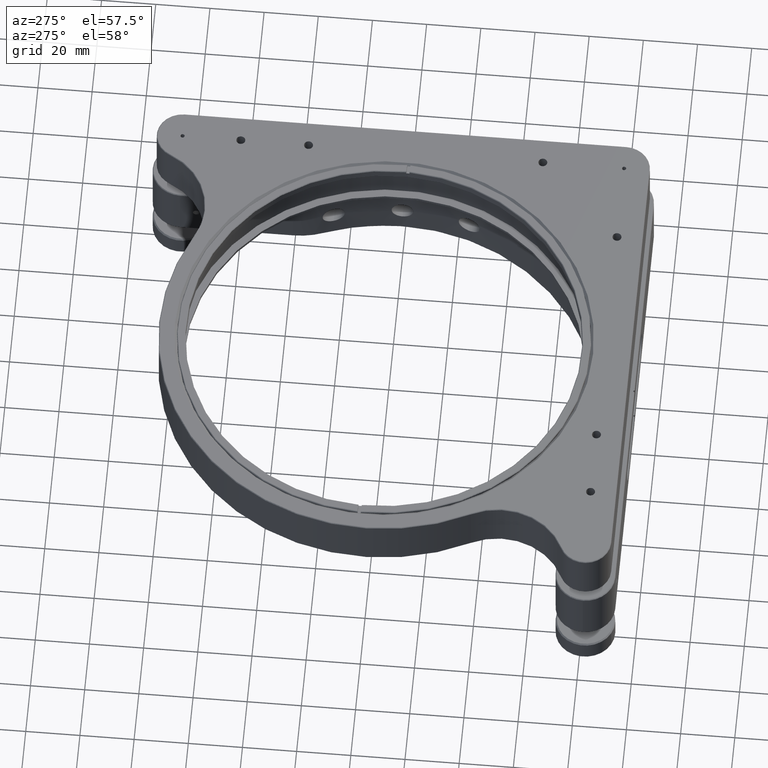
[diagram: clean part render]
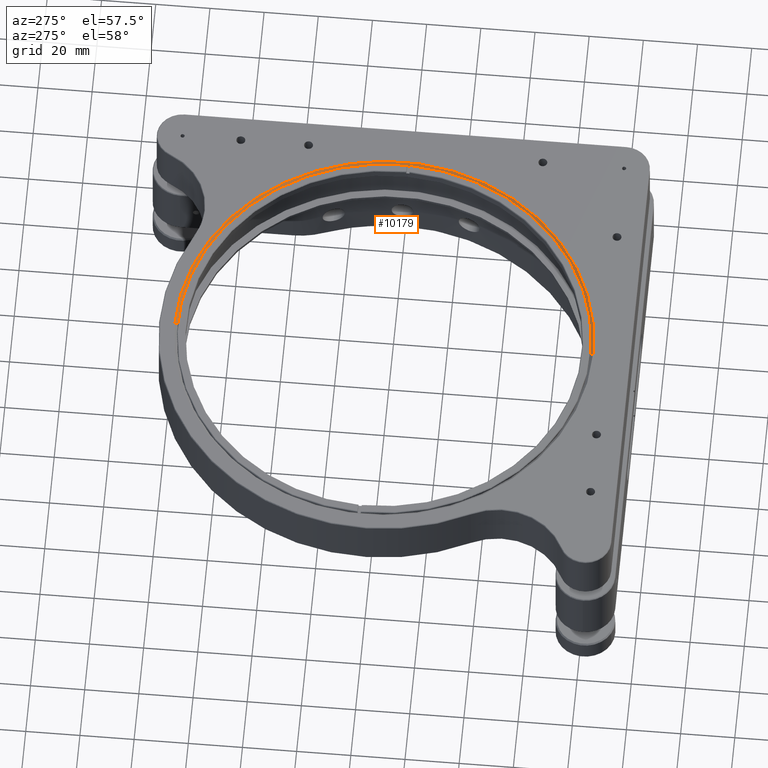
[diagram: same view with one face highlighted and labeled with its STEP entity id]
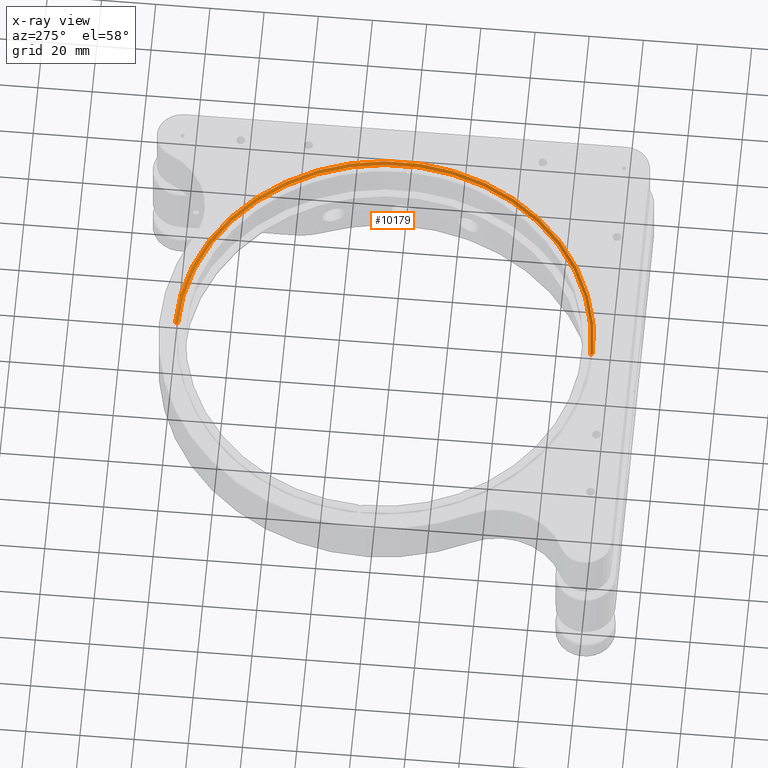
[diagram: x-ray of the same camera — body ghosted, the highlighted face saturated]
A machine part, auxiliary view. The second image highlights one B-rep face of the part: STEP entity #10179.
The next image is the same camera in x-ray: the body ghosted, the highlighted face saturated — about 0% of this face is hidden behind the body in this view.
In plain terms, the highlighted conical surface has half-angle 45 deg.
Its self-contained STEP definition (entity closure, byte-faithful):
#497 = CARTESIAN_POINT ( 'NONE',  ( -7.188860378853473330E-13, 77.20000000000072760, 34.49528137423859420 ) ) ;
#1224 = DIRECTION ( 'NONE',  ( -4.514005490879960321E-16, 0.7071067811865493491, 0.7071067811865455743 ) ) ;
#1454 = VERTEX_POINT ( 'NONE', #497 ) ;
#1649 = ORIENTED_EDGE ( 'NONE', *, *, #14606, .T. ) ;
#1711 = VECTOR ( 'NONE', #6521, 1000.000000000000114 ) ;
#2099 = CARTESIAN_POINT ( 'NONE',  ( -6.696032378222365735E-13, 5.872038966181489995E-13, 34.49528137423859420 ) ) ;
#2833 = CONICAL_SURFACE ( 'NONE', #15592, 77.20000000000014495, 0.7853981633974500554 ) ;
#3222 = EDGE_CURVE ( 'NONE', #11468, #3933, #16058, .T. ) ;
#3361 = ORIENTED_EDGE ( 'NONE', *, *, #6915, .F. ) ;
#3933 = VERTEX_POINT ( 'NONE', #8455 ) ;
#4670 = EDGE_CURVE ( 'NONE', #10335, #1454, #12596, .T. ) ;
#5118 = CARTESIAN_POINT ( 'NONE',  ( -6.297747110485433373E-13, -77.19999999999956231, 34.49528137423859420 ) ) ;
#5776 = CARTESIAN_POINT ( 'NONE',  ( -6.696032378222365735E-13, 5.872038966181489995E-13, 34.49528137423859420 ) ) ;
#6521 = DIRECTION ( 'NONE',  ( 3.648070090316273385E-16, -0.7071067811865493491, 0.7071067811865455743 ) ) ;
#6915 = EDGE_CURVE ( 'NONE', #3933, #1454, #11202, .T. ) ;
#6939 = AXIS2_PLACEMENT_3D ( 'NONE', #2099, #17617, #13439 ) ;
#7228 = VECTOR ( 'NONE', #1224, 1000.000000000000114 ) ;
#7409 = ORIENTED_EDGE ( 'NONE', *, *, #4670, .T. ) ;
#7468 = AXIS2_PLACEMENT_3D ( 'NONE', #13104, #7537, #11719 ) ;
#7537 = DIRECTION ( 'NONE',  ( 1.460576560598803085E-21, -1.472652018071817779E-36, 1.000000000000000000 ) ) ;
#8455 = CARTESIAN_POINT ( 'NONE',  ( -7.182476611067644650E-13, 76.20000000000072760, 33.49528137423860130 ) ) ;
#8581 = FACE_OUTER_BOUND ( 'NONE', #14638, .T. ) ;
#8613 = ORIENTED_EDGE ( 'NONE', *, *, #3222, .F. ) ;
#9043 = LINE ( 'NONE', #5118, #1711 ) ;
#10179 = ADVANCED_FACE ( 'NONE', ( #8581 ), #2833, .F. ) ;
#10335 = VERTEX_POINT ( 'NONE', #13015 ) ;
#11202 = LINE ( 'NONE', #17094, #7228 ) ;
#11468 = VERTEX_POINT ( 'NONE', #12221 ) ;
#11719 = DIRECTION ( 'NONE',  ( -6.383782391594655038E-16, 1.000000000000000000, 0.000000000000000000 ) ) ;
#12221 = CARTESIAN_POINT ( 'NONE',  ( -6.302906381181218176E-13, -76.19999999999940599, 33.49528137423860130 ) ) ;
#12596 = CIRCLE ( 'NONE', #6939, 77.20000000000014495 ) ;
#13015 = CARTESIAN_POINT ( 'NONE',  ( -6.297747110485433373E-13, -77.19999999999956231, 34.49528137423859420 ) ) ;
#13104 = CARTESIAN_POINT ( 'NONE',  ( -6.696032392828130697E-13, 5.872038966181489995E-13, 33.49528137423860130 ) ) ;
#13439 = DIRECTION ( 'NONE',  ( -6.383782391594653066E-16, 1.000000000000000000, 0.000000000000000000 ) ) ;
#14606 = EDGE_CURVE ( 'NONE', #11468, #10335, #9043, .T. ) ;
#14638 = EDGE_LOOP ( 'NONE', ( #8613, #1649, #7409, #3361 ) ) ;
#15592 = AXIS2_PLACEMENT_3D ( 'NONE', #5776, #18305, #17862 ) ;
#16058 = CIRCLE ( 'NONE', #7468, 76.20000000000014495 ) ;
#17094 = CARTESIAN_POINT ( 'NONE',  ( -7.188860378853473330E-13, 77.20000000000072760, 34.49528137423859420 ) ) ;
#17617 = DIRECTION ( 'NONE',  ( 1.460576560598803085E-21, -1.472652018071817779E-36, 1.000000000000000000 ) ) ;
#17862 = DIRECTION ( 'NONE',  ( -6.383782391594653066E-16, 1.000000000000000000, 0.000000000000000000 ) ) ;
#18305 = DIRECTION ( 'NONE',  ( 1.460576560598803085E-21, -1.472652018071817779E-36, 1.000000000000000000 ) ) ;